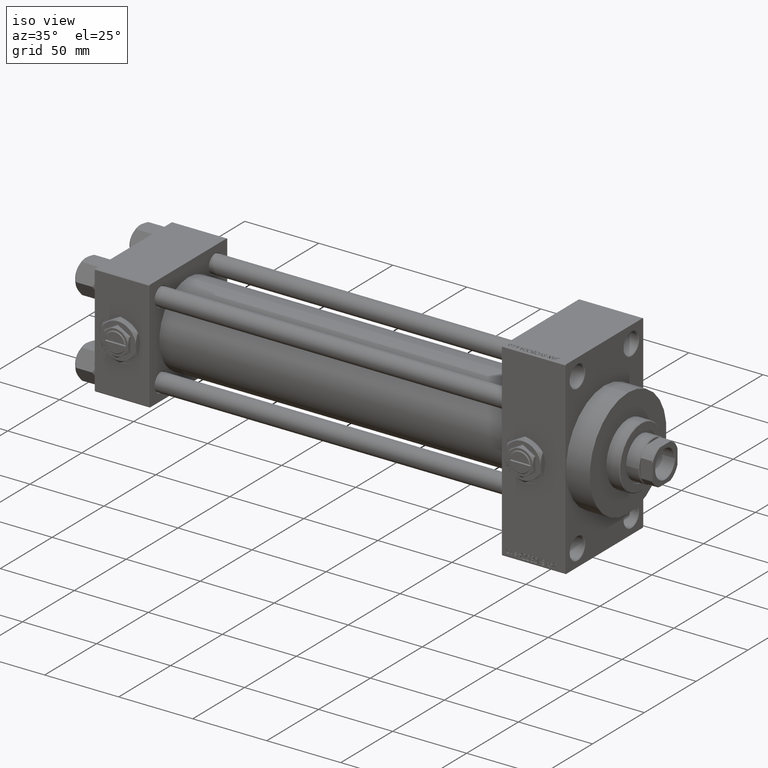
[diagram: clean part render]
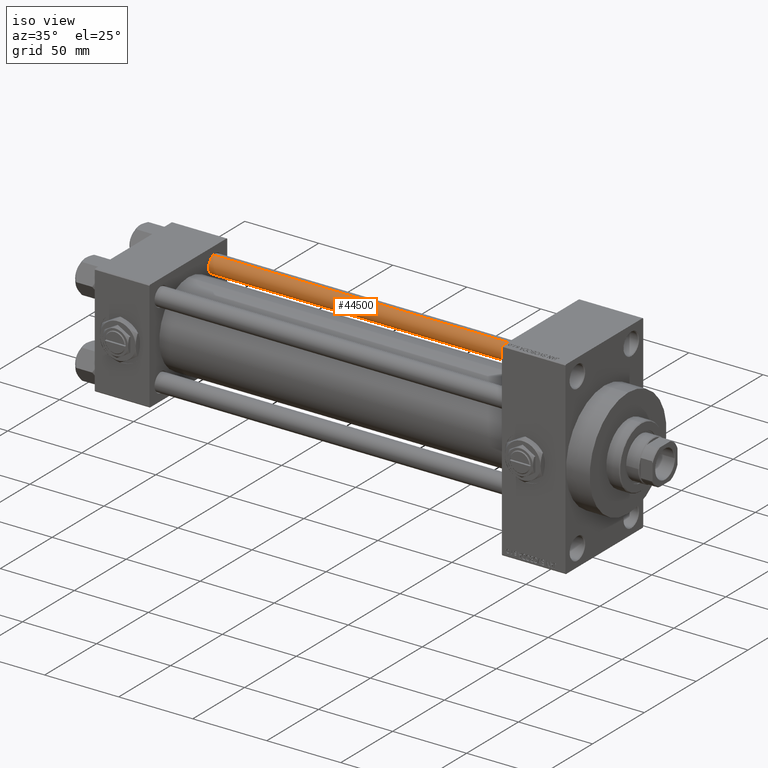
[diagram: same view with one face highlighted and labeled with its STEP entity id]
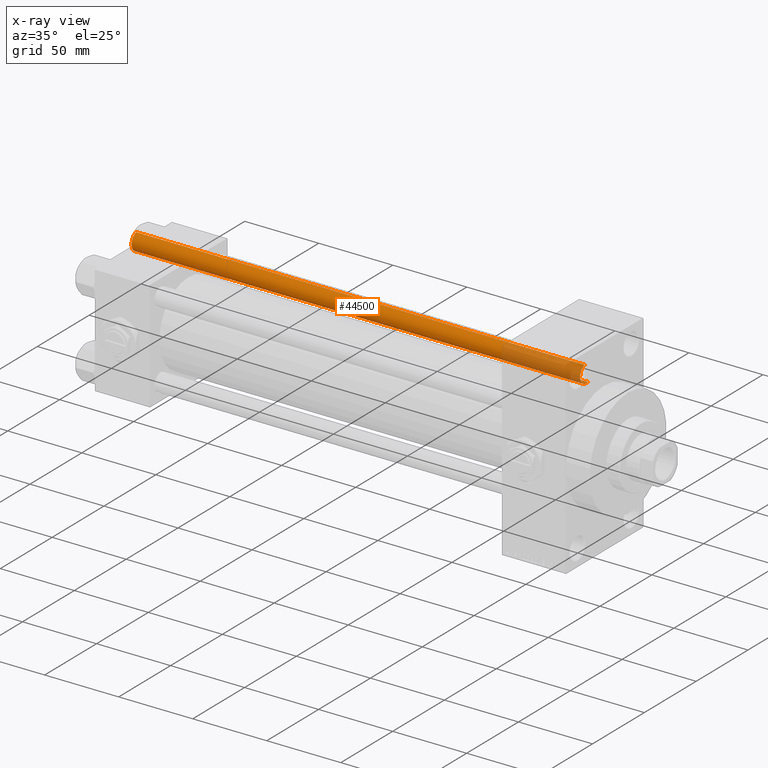
[diagram: x-ray of the same camera — body ghosted, the highlighted face saturated]
A machine part, iso view. The second image highlights one B-rep face of the part: STEP entity #44500.
The next image is the same camera in x-ray: the body ghosted, the highlighted face saturated — about 18% of this face is hidden behind the body in this view.
In plain terms, the highlighted cylindrical surface (edge-blend (fillet) strip) has radius 6 mm, axis along (-1, -0, 0).
Its self-contained STEP definition (entity closure, byte-faithful):
#225 = DIRECTION ( 'NONE',  ( -0.000000000000000000, -0.000000000000000000, -1.000000000000000000 ) ) ;
#1568 = DIRECTION ( 'NONE',  ( -0.000000000000000000, -0.000000000000000000, -1.000000000000000000 ) ) ;
#2866 = EDGE_CURVE ( 'NONE', #5419, #17836, #4381, .T. ) ;
#4381 = CIRCLE ( 'NONE', #22732, 6.000000000000000888 ) ;
#5052 = VERTEX_POINT ( 'NONE', #5928 ) ;
#5419 = VERTEX_POINT ( 'NONE', #42385 ) ;
#5768 = DIRECTION ( 'NONE',  ( 1.000000000000000000, 0.000000000000000000, 0.000000000000000000 ) ) ;
#5928 = CARTESIAN_POINT ( 'NONE',  ( -6.000000000000000888, 0.000000000000000000, 303.5000000000000000 ) ) ;
#6189 = EDGE_CURVE ( 'NONE', #17100, #17836, #20526, .T. ) ;
#6803 = AXIS2_PLACEMENT_3D ( 'NONE', #26599, #41782, #41288 ) ;
#7271 = CARTESIAN_POINT ( 'NONE',  ( 6.000000000000000888, 7.347880794884120722E-16, 0.4999999999999449329 ) ) ;
#13732 = DIRECTION ( 'NONE',  ( 0.000000000000000000, 0.000000000000000000, -1.000000000000000000 ) ) ;
#15415 = CARTESIAN_POINT ( 'NONE',  ( -6.000000000000000888, 0.000000000000000000, 304.0000000000000000 ) ) ;
#16180 = DIRECTION ( 'NONE',  ( 1.000000000000000000, 0.000000000000000000, 0.000000000000000000 ) ) ;
#17100 = VERTEX_POINT ( 'NONE', #36325 ) ;
#17421 = CIRCLE ( 'NONE', #18245, 6.000000000000000888 ) ;
#17836 = VERTEX_POINT ( 'NONE', #7271 ) ;
#18245 = AXIS2_PLACEMENT_3D ( 'NONE', #43890, #13732, #5768 ) ;
#20526 = LINE ( 'NONE', #35719, #49099 ) ;
#22732 = AXIS2_PLACEMENT_3D ( 'NONE', #23698, #42125, #16180 ) ;
#23372 = EDGE_CURVE ( 'NONE', #17100, #5052, #17421, .T. ) ;
#23698 = CARTESIAN_POINT ( 'NONE',  ( 0.000000000000000000, 0.000000000000000000, 0.4999999999999449329 ) ) ;
#26599 = CARTESIAN_POINT ( 'NONE',  ( 0.000000000000000000, 0.000000000000000000, 304.0000000000000000 ) ) ;
#28609 = ORIENTED_EDGE ( 'NONE', *, *, #6189, .F. ) ;
#31484 = ORIENTED_EDGE ( 'NONE', *, *, #2866, .T. ) ;
#33574 = CYLINDRICAL_SURFACE ( 'NONE', #6803, 6.000000000000000888 ) ;
#33768 = EDGE_CURVE ( 'NONE', #5052, #5419, #46310, .T. ) ;
#35719 = CARTESIAN_POINT ( 'NONE',  ( 6.000000000000000888, 7.347880794884120722E-16, 304.0000000000000000 ) ) ;
#35986 = VECTOR ( 'NONE', #225, 1000.000000000000000 ) ;
#36325 = CARTESIAN_POINT ( 'NONE',  ( 6.000000000000000888, 7.347880794884120722E-16, 303.5000000000000000 ) ) ;
#37274 = ORIENTED_EDGE ( 'NONE', *, *, #23372, .T. ) ;
#41038 = FACE_OUTER_BOUND ( 'NONE', #43256, .T. ) ;
#41288 = DIRECTION ( 'NONE',  ( -1.000000000000000000, 0.000000000000000000, 0.000000000000000000 ) ) ;
#41782 = DIRECTION ( 'NONE',  ( -0.000000000000000000, -0.000000000000000000, -1.000000000000000000 ) ) ;
#42125 = DIRECTION ( 'NONE',  ( -0.000000000000000000, -0.000000000000000000, 1.000000000000000000 ) ) ;
#42385 = CARTESIAN_POINT ( 'NONE',  ( -6.000000000000000888, 0.000000000000000000, 0.4999999999999449329 ) ) ;
#43256 = EDGE_LOOP ( 'NONE', ( #28609, #37274, #48981, #31484 ) ) ;
#43890 = CARTESIAN_POINT ( 'NONE',  ( 0.000000000000000000, 0.000000000000000000, 303.5000000000000000 ) ) ;
#44500 = ADVANCED_FACE ( 'NONE', ( #41038 ), #33574, .T. ) ;
#46310 = LINE ( 'NONE', #15415, #35986 ) ;
#48981 = ORIENTED_EDGE ( 'NONE', *, *, #33768, .T. ) ;
#49099 = VECTOR ( 'NONE', #1568, 1000.000000000000000 ) ;